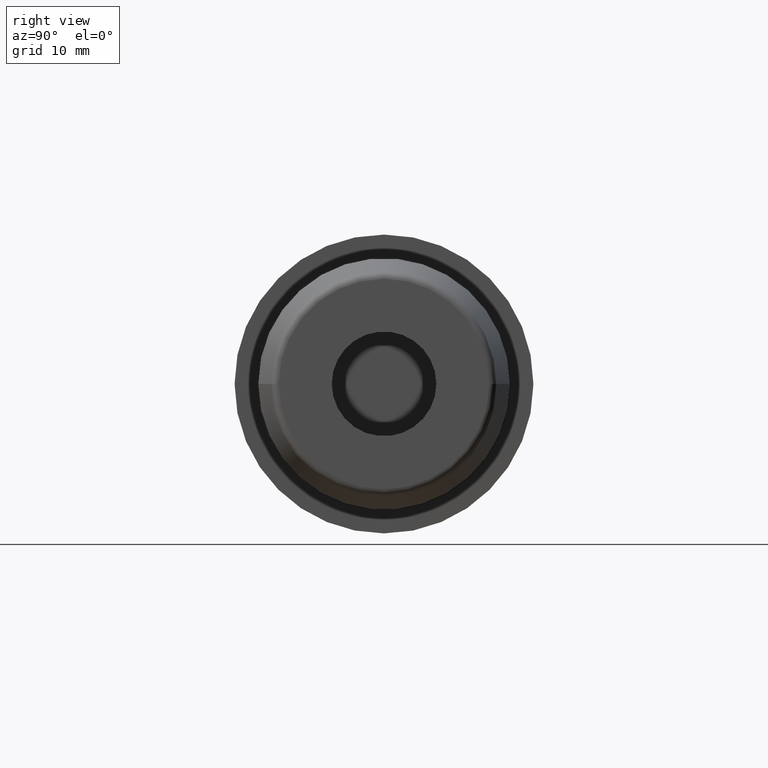
[diagram: clean part render]
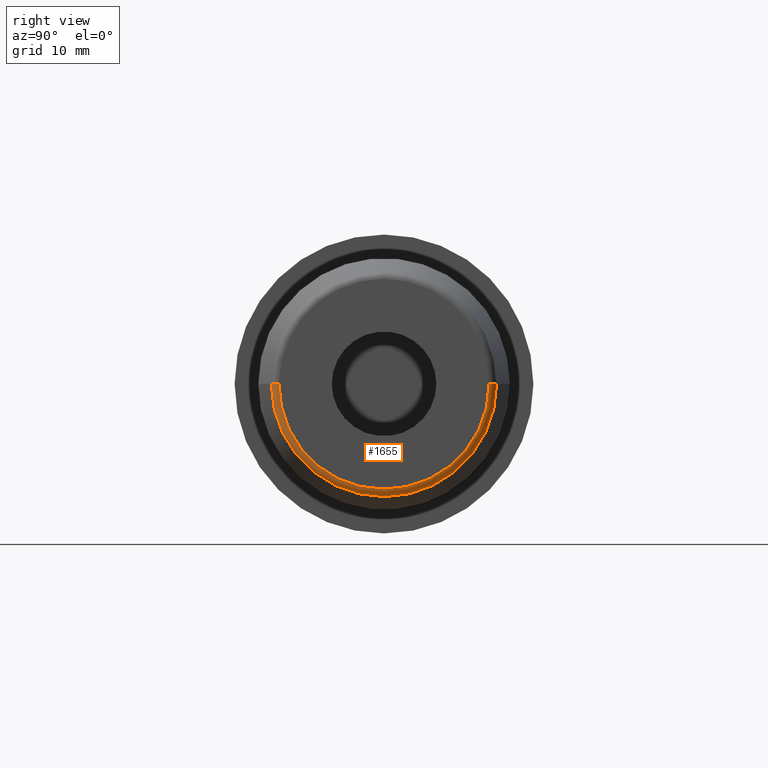
[diagram: same view with one face highlighted and labeled with its STEP entity id]
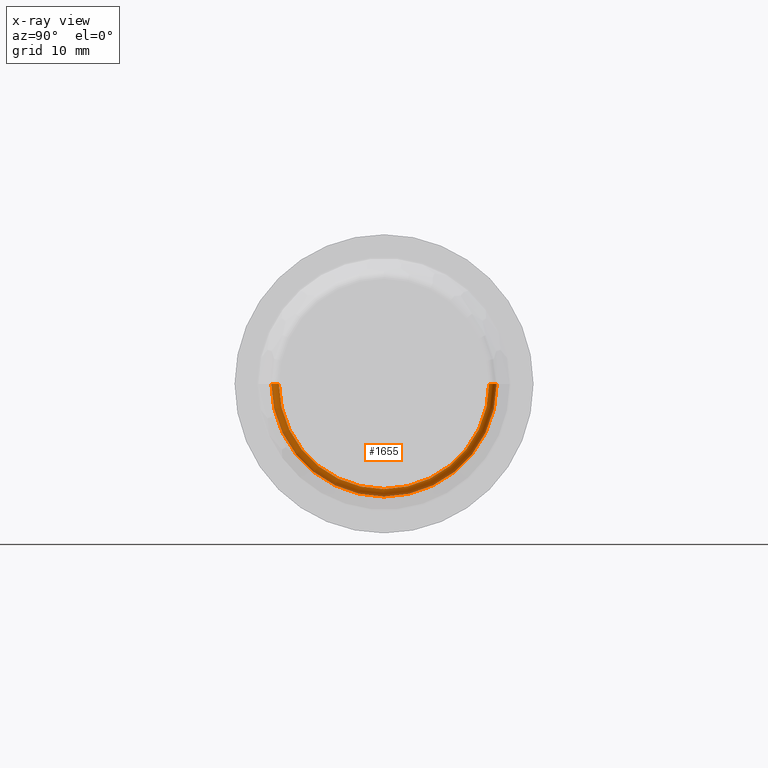
[diagram: x-ray of the same camera — body ghosted, the highlighted face saturated]
A machine part, right view. The second image highlights one B-rep face of the part: STEP entity #1655.
The next image is the same camera in x-ray: the body ghosted, the highlighted face saturated — about 0% of this face is hidden behind the body in this view.
In plain terms, the highlighted toroidal blend (fillet) surface has major radius 14.0756 mm and minor (blend) radius 1 mm.
Its self-contained STEP definition (entity closure, byte-faithful):
#562=CARTESIAN_POINT('',(5.9E1,-1.407560950834E1,-1.596082987998E-11));
#563=DIRECTION('',(0.E0,-1.133934959818E-12,1.E0));
#564=DIRECTION('',(7.845909572793E-2,-9.969173337331E-1,-1.130439416769E-12));
#565=AXIS2_PLACEMENT_3D('',#562,#563,#564);
#567=CARTESIAN_POINT('',(5.9E1,1.407560950834E1,1.596008047944E-11));
#568=DIRECTION('',(0.E0,1.133881183391E-12,-1.E0));
#569=DIRECTION('',(7.845909572793E-2,9.969173337331E-1,1.130385806116E-12));
#570=AXIS2_PLACEMENT_3D('',#567,#568,#569);
#572=CARTESIAN_POINT('',(5.907845909573E1,0.E0,0.E0));
#573=DIRECTION('',(-1.E0,0.E0,0.E0));
#574=DIRECTION('',(0.E0,1.E0,0.E0));
#575=AXIS2_PLACEMENT_3D('',#572,#573,#574);
#590=CARTESIAN_POINT('',(6.E1,0.E0,0.E0));
#591=DIRECTION('',(-1.E0,0.E0,0.E0));
#592=DIRECTION('',(0.E0,1.E0,0.E0));
#593=AXIS2_PLACEMENT_3D('',#590,#591,#592);
#736=CARTESIAN_POINT('',(5.907845909573E1,1.507252684207E1,0.E0));
#737=CARTESIAN_POINT('',(5.907845909573E1,-1.507252684207E1,0.E0));
#738=VERTEX_POINT('',#736);
#739=VERTEX_POINT('',#737);
#740=CARTESIAN_POINT('',(6.E1,1.407560950834E1,0.E0));
#741=CARTESIAN_POINT('',(6.E1,-1.407560950834E1,0.E0));
#742=VERTEX_POINT('',#740);
#743=VERTEX_POINT('',#741);
#1642=CARTESIAN_POINT('',(5.9E1,0.E0,0.E0));
#1643=DIRECTION('',(1.E0,0.E0,0.E0));
#1644=DIRECTION('',(0.E0,9.999892276277E-1,4.641619172367E-3));
#1645=AXIS2_PLACEMENT_3D('',#1642,#1643,#1644);
#1646=TOROIDAL_SURFACE('',#1645,1.407560950834E1,1.E0);
#1648=ORIENTED_EDGE('',*,*,#1647,.T.);
#1649=ORIENTED_EDGE('',*,*,#1637,.T.);
#1651=ORIENTED_EDGE('',*,*,#1650,.F.);
#1652=ORIENTED_EDGE('',*,*,#1633,.F.);
#1653=EDGE_LOOP('',(#1648,#1649,#1651,#1652));
#1654=FACE_OUTER_BOUND('',#1653,.F.);
#1655=ADVANCED_FACE('',(#1654),#1646,.T.);
#566=CIRCLE('',#565,1.E0);
#571=CIRCLE('',#570,1.E0);
#576=CIRCLE('',#575,1.507252684207E1);
#594=CIRCLE('',#593,1.407560950834E1);
#1633=EDGE_CURVE('',#738,#742,#571,.T.);
#1637=EDGE_CURVE('',#739,#743,#566,.T.);
#1647=EDGE_CURVE('',#738,#739,#576,.T.);
#1650=EDGE_CURVE('',#742,#743,#594,.T.);